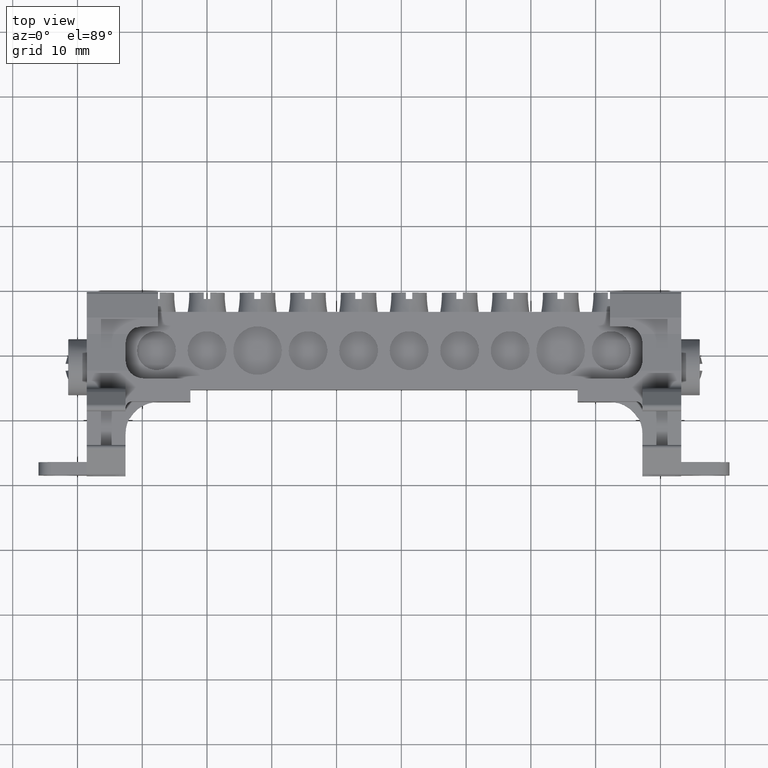
[diagram: clean part render]
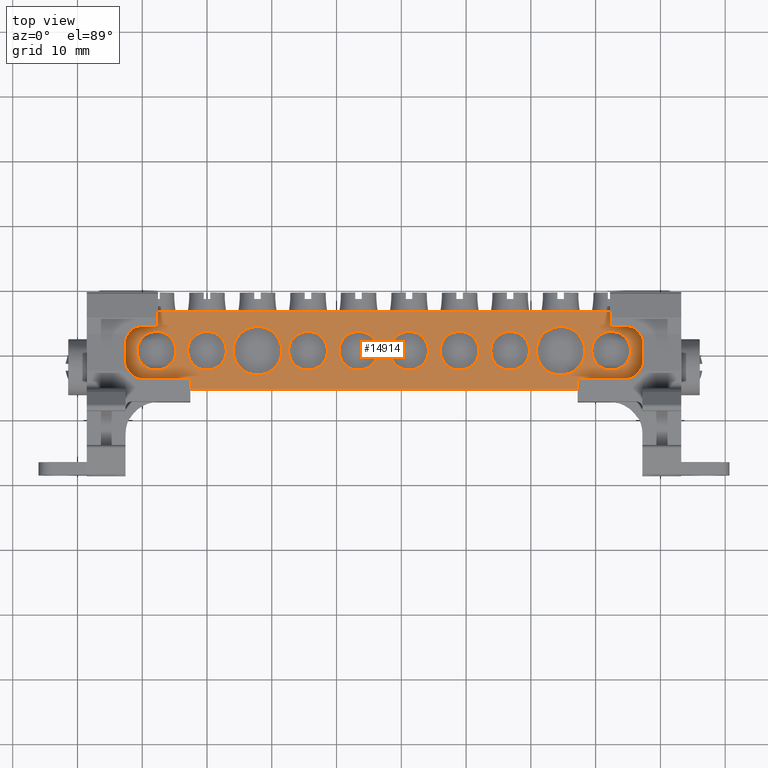
[diagram: same view with one face highlighted and labeled with its STEP entity id]
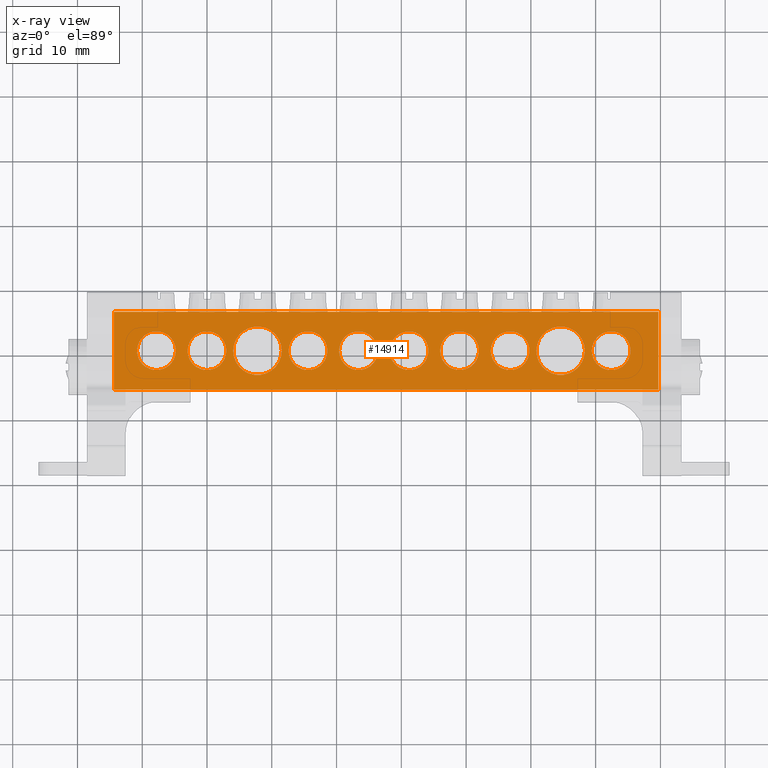
[diagram: x-ray of the same camera — body ghosted, the highlighted face saturated]
A machine part, top view. The second image highlights one B-rep face of the part: STEP entity #14914.
The next image is the same camera in x-ray: the body ghosted, the highlighted face saturated — about 0% of this face is hidden behind the body in this view.
In plain terms, the highlighted planar face has unit normal (0, 0, -1).
Its self-contained STEP definition (entity closure, byte-faithful):
#277 = CIRCLE ( 'NONE', #278, 3.000000000000002700 ) ;
#278 = AXIS2_PLACEMENT_3D ( 'NONE', #1253, #1250, #1277 ) ;
#279 = CIRCLE ( 'NONE', #296, 3.000000000000002700 ) ;
#296 = AXIS2_PLACEMENT_3D ( 'NONE', #1313, #1320, #1338 ) ;
#321 = CIRCLE ( 'NONE', #322, 3.000000000000002700 ) ;
#322 = AXIS2_PLACEMENT_3D ( 'NONE', #1418, #1405, #1419 ) ;
#1250 = DIRECTION ( 'NONE',  ( 0.0000000000000000000, 0.0000000000000000000, 1.000000000000000000 ) ) ;
#1253 = CARTESIAN_POINT ( 'NONE',  ( -84.40539649368642500, -39.46391012921964900, 99.25723811290720300 ) ) ;
#1277 = DIRECTION ( 'NONE',  ( -1.000000000000000000, 0.0000000000000000000, 0.0000000000000000000 ) ) ;
#1313 = CARTESIAN_POINT ( 'NONE',  ( -76.60539649368639900, -39.46391012921964900, 99.25723811290720300 ) ) ;
#1320 = DIRECTION ( 'NONE',  ( 0.0000000000000000000, 0.0000000000000000000, 1.000000000000000000 ) ) ;
#1338 = DIRECTION ( 'NONE',  ( -1.000000000000000000, 0.0000000000000000000, 0.0000000000000000000 ) ) ;
#1405 = DIRECTION ( 'NONE',  ( 0.0000000000000000000, 0.0000000000000000000, 1.000000000000000000 ) ) ;
#1418 = CARTESIAN_POINT ( 'NONE',  ( -68.80539649368640200, -39.46391012921964900, 99.25723811290720300 ) ) ;
#1419 = DIRECTION ( 'NONE',  ( -1.000000000000000000, 0.0000000000000000000, 0.0000000000000000000 ) ) ;
#1513 = CARTESIAN_POINT ( 'NONE',  ( -73.60539649368639900, -39.46391012921964900, 99.25723811290720300 ) ) ;
#1515 = CARTESIAN_POINT ( 'NONE',  ( -110.8053964936864200, -39.46391012921964900, 99.25723811290720300 ) ) ;
#1673 = CARTESIAN_POINT ( 'NONE',  ( -79.60539649368639900, -39.46391012921964900, 99.25723811290720300 ) ) ;
#1675 = CARTESIAN_POINT ( 'NONE',  ( -87.40539649368642500, -39.46391012921964900, 99.25723811290720300 ) ) ;
#1676 = CARTESIAN_POINT ( 'NONE',  ( -71.80539649368640200, -39.46391012921964900, 99.25723811290720300 ) ) ;
#1679 = CARTESIAN_POINT ( 'NONE',  ( -65.80539649368640200, -39.46391012921964900, 99.25723811290720300 ) ) ;
#1683 = CARTESIAN_POINT ( 'NONE',  ( -88.45539649368639300, -39.46391012921964900, 99.25723811290720300 ) ) ;
#1684 = CARTESIAN_POINT ( 'NONE',  ( -84.40539649368642500, -39.46391012921964900, 99.25723811290720300 ) ) ;
#1685 = DIRECTION ( 'NONE',  ( -1.000000000000000000, 0.0000000000000000000, 0.0000000000000000000 ) ) ;
#1689 = DIRECTION ( 'NONE',  ( 0.0000000000000000000, 0.0000000000000000000, 1.000000000000000000 ) ) ;
#1690 = CARTESIAN_POINT ( 'NONE',  ( -64.00539649368640500, -39.46391012921964900, 99.25723811290720300 ) ) ;
#1708 = EDGE_CURVE ( 'NONE', #11611, #11573, #16912, .T. ) ;
#1710 = EDGE_CURVE ( 'NONE', #8427, #8460, #18089, .T. ) ;
#1711 = EDGE_CURVE ( 'NONE', #8433, #8455, #18045, .T. ) ;
#1717 = EDGE_CURVE ( 'NONE', #8460, #8271, #18087, .T. ) ;
#1725 = EDGE_CURVE ( 'NONE', #8476, #8433, #18132, .T. ) ;
#1728 = EDGE_CURVE ( 'NONE', #8455, #8427, #18133, .T. ) ;
#1729 = EDGE_CURVE ( 'NONE', #8515, #8479, #18130, .T. ) ;
#1744 = EDGE_CURVE ( 'NONE', #8271, #8440, #18165, .T. ) ;
#1759 = EDGE_CURVE ( 'NONE', #11595, #11564, #16938, .T. ) ;
#1884 = AXIS2_PLACEMENT_3D ( 'NONE', #8990, #8993, #8986 ) ;
#1892 = CIRCLE ( 'NONE', #1895, 3.000000000000002700 ) ;
#1895 = AXIS2_PLACEMENT_3D ( 'NONE', #8914, #8923, #8924 ) ;
#1898 = CIRCLE ( 'NONE', #1899, 3.000000000000002700 ) ;
#1899 = AXIS2_PLACEMENT_3D ( 'NONE', #9042, #9047, #9043 ) ;
#1903 = CIRCLE ( 'NONE', #1934, 3.000000000000002700 ) ;
#1906 = CIRCLE ( 'NONE', #1923, 3.750000000000003600 ) ;
#1913 = CIRCLE ( 'NONE', #1927, 3.750000000000003600 ) ;
#1923 = AXIS2_PLACEMENT_3D ( 'NONE', #8948, #8953, #8951 ) ;
#1927 = AXIS2_PLACEMENT_3D ( 'NONE', #8979, #8973, #8975 ) ;
#1933 = CIRCLE ( 'NONE', #1884, 3.000000000000002700 ) ;
#1934 = AXIS2_PLACEMENT_3D ( 'NONE', #8909, #8902, #8911 ) ;
#1964 = AXIS2_PLACEMENT_3D ( 'NONE', #9057, #9070, #9061 ) ;
#1987 = CIRCLE ( 'NONE', #1964, 3.000000000000002700 ) ;
#2052 = AXIS2_PLACEMENT_3D ( 'NONE', #1684, #1689, #1685 ) ;
#2067 = AXIS2_PLACEMENT_3D ( 'NONE', #21965, #21966, #21967 ) ;
#2070 = AXIS2_PLACEMENT_3D ( 'NONE', #14173, #14149, #14159 ) ;
#2076 = CIRCLE ( 'NONE', #2067, 3.000000000000002700 ) ;
#2089 = CIRCLE ( 'NONE', #2052, 3.000000000000002700 ) ;
#2093 = CIRCLE ( 'NONE', #2070, 3.750000000000003600 ) ;
#3856 = CARTESIAN_POINT ( 'NONE',  ( -40.60539649368644900, -39.46391012921964900, 99.25723811290720300 ) ) ;
#3864 = CARTESIAN_POINT ( 'NONE',  ( -103.0053964936863900, -39.46391012921964900, 99.25723811290720300 ) ) ;
#4654 = CIRCLE ( 'NONE', #4726, 3.000000000000002700 ) ;
#4726 = AXIS2_PLACEMENT_3D ( 'NONE', #6551, #6552, #6573 ) ;
#4743 = CIRCLE ( 'NONE', #4771, 3.000000000000002700 ) ;
#4771 = AXIS2_PLACEMENT_3D ( 'NONE', #5831, #5914, #5866 ) ;
#4774 = VECTOR ( 'NONE', #5878, 1000.000000000000000 ) ;
#4791 = VECTOR ( 'NONE', #6664, 1000.000000000000000 ) ;
#4806 = AXIS2_PLACEMENT_3D ( 'NONE', #6130, #6132, #6125 ) ;
#4815 = AXIS2_PLACEMENT_3D ( 'NONE', #6176, #6230, #6308 ) ;
#4816 = CIRCLE ( 'NONE', #4818, 3.750000000000003600 ) ;
#4818 = AXIS2_PLACEMENT_3D ( 'NONE', #13692, #13675, #13699 ) ;
#4824 = CIRCLE ( 'NONE', #4815, 3.000000000000002700 ) ;
#4825 = CIRCLE ( 'NONE', #4806, 3.000000000000002700 ) ;
#5831 = CARTESIAN_POINT ( 'NONE',  ( -68.80539649368640200, -39.46391012921964900, 99.25723811290720300 ) ) ;
#5866 = DIRECTION ( 'NONE',  ( -1.000000000000000000, 0.0000000000000000000, 0.0000000000000000000 ) ) ;
#5868 = CARTESIAN_POINT ( 'NONE',  ( -91.05539649368640200, -45.45958989761807300, 99.25723811290720300 ) ) ;
#5878 = DIRECTION ( 'NONE',  ( -1.000000000000000000, 0.0000000000000000000, -0.0000000000000000000 ) ) ;
#5914 = DIRECTION ( 'NONE',  ( 0.0000000000000000000, 0.0000000000000000000, 1.000000000000000000 ) ) ;
#5924 = LINE ( 'NONE', #5868, #4774 ) ;
#6125 = DIRECTION ( 'NONE',  ( 1.000000000000000000, 0.0000000000000000000, 0.0000000000000000000 ) ) ;
#6130 = CARTESIAN_POINT ( 'NONE',  ( -37.60539649368644200, -39.46391012921964900, 99.25723811290720300 ) ) ;
#6132 = DIRECTION ( 'NONE',  ( 0.0000000000000000000, 0.0000000000000000000, 1.000000000000000000 ) ) ;
#6176 = CARTESIAN_POINT ( 'NONE',  ( -61.00539649368639800, -39.46391012921964900, 99.25723811290720300 ) ) ;
#6230 = DIRECTION ( 'NONE',  ( 0.0000000000000000000, 0.0000000000000000000, 1.000000000000000000 ) ) ;
#6308 = DIRECTION ( 'NONE',  ( -1.000000000000000000, 0.0000000000000000000, 0.0000000000000000000 ) ) ;
#6459 = CARTESIAN_POINT ( 'NONE',  ( -30.30539649368634200, -38.84917704818487700, 99.25723811290701800 ) ) ;
#6551 = CARTESIAN_POINT ( 'NONE',  ( -53.20539649368640100, -39.46391012921964900, 99.25723811290720300 ) ) ;
#6552 = DIRECTION ( 'NONE',  ( 0.0000000000000000000, 0.0000000000000000000, 1.000000000000000000 ) ) ;
#6573 = DIRECTION ( 'NONE',  ( 1.000000000000000000, 0.0000000000000000000, 0.0000000000000000000 ) ) ;
#6633 = CARTESIAN_POINT ( 'NONE',  ( -91.05539649368640200, -45.46391012921959900, 99.25723811290720300 ) ) ;
#6636 = LINE ( 'NONE', #6633, #4791 ) ;
#6664 = DIRECTION ( 'NONE',  ( -1.000000000000000000, 0.0000000000000000000, -0.0000000000000000000 ) ) ;
#6766 = CARTESIAN_POINT ( 'NONE',  ( -102.5753964936866400, -45.45958989761886900, 99.25723811290720300 ) ) ;
#6769 = CARTESIAN_POINT ( 'NONE',  ( -114.4053964936864200, -33.46391012921964900, 99.25723811290720300 ) ) ;
#8271 = VERTEX_POINT ( 'NONE', #6459 ) ;
#8427 = VERTEX_POINT ( 'NONE', #6769 ) ;
#8433 = VERTEX_POINT ( 'NONE', #6766 ) ;
#8440 = VERTEX_POINT ( 'NONE', #17653 ) ;
#8455 = VERTEX_POINT ( 'NONE', #17195 ) ;
#8460 = VERTEX_POINT ( 'NONE', #17204 ) ;
#8476 = VERTEX_POINT ( 'NONE', #17233 ) ;
#8479 = VERTEX_POINT ( 'NONE', #17215 ) ;
#8515 = VERTEX_POINT ( 'NONE', #17232 ) ;
#8902 = DIRECTION ( 'NONE',  ( 0.0000000000000000000, 0.0000000000000000000, 1.000000000000000000 ) ) ;
#8909 = CARTESIAN_POINT ( 'NONE',  ( -100.0053964936863900, -39.46391012921964900, 99.25723811290720300 ) ) ;
#8911 = DIRECTION ( 'NONE',  ( 1.000000000000000000, 0.0000000000000000000, 0.0000000000000000000 ) ) ;
#8914 = CARTESIAN_POINT ( 'NONE',  ( -107.8053964936864000, -39.46391012921964900, 99.25723811290720300 ) ) ;
#8923 = DIRECTION ( 'NONE',  ( 0.0000000000000000000, 0.0000000000000000000, 1.000000000000000000 ) ) ;
#8924 = DIRECTION ( 'NONE',  ( 1.000000000000000000, 0.0000000000000000000, 0.0000000000000000000 ) ) ;
#8948 = CARTESIAN_POINT ( 'NONE',  ( -92.20539649368639300, -39.46391012921964900, 99.25723811290720300 ) ) ;
#8951 = DIRECTION ( 'NONE',  ( 1.000000000000000000, 0.0000000000000000000, 0.0000000000000000000 ) ) ;
#8953 = DIRECTION ( 'NONE',  ( 0.0000000000000000000, 0.0000000000000000000, 1.000000000000000000 ) ) ;
#8973 = DIRECTION ( 'NONE',  ( 0.0000000000000000000, 0.0000000000000000000, 1.000000000000000000 ) ) ;
#8975 = DIRECTION ( 'NONE',  ( 1.000000000000000000, 0.0000000000000000000, 0.0000000000000000000 ) ) ;
#8979 = CARTESIAN_POINT ( 'NONE',  ( -45.40539649368639600, -39.46391012921964900, 99.25723811290720300 ) ) ;
#8986 = DIRECTION ( 'NONE',  ( -1.000000000000000000, 0.0000000000000000000, 0.0000000000000000000 ) ) ;
#8990 = CARTESIAN_POINT ( 'NONE',  ( -61.00539649368639800, -39.46391012921964900, 99.25723811290720300 ) ) ;
#8993 = DIRECTION ( 'NONE',  ( 0.0000000000000000000, 0.0000000000000000000, 1.000000000000000000 ) ) ;
#9042 = CARTESIAN_POINT ( 'NONE',  ( -53.20539649368640100, -39.46391012921964900, 99.25723811290720300 ) ) ;
#9043 = DIRECTION ( 'NONE',  ( 1.000000000000000000, 0.0000000000000000000, 0.0000000000000000000 ) ) ;
#9047 = DIRECTION ( 'NONE',  ( 0.0000000000000000000, 0.0000000000000000000, 1.000000000000000000 ) ) ;
#9057 = CARTESIAN_POINT ( 'NONE',  ( -37.60539649368644200, -39.46391012921964900, 99.25723811290720300 ) ) ;
#9061 = DIRECTION ( 'NONE',  ( 1.000000000000000000, 0.0000000000000000000, 0.0000000000000000000 ) ) ;
#9070 = DIRECTION ( 'NONE',  ( 0.0000000000000000000, 0.0000000000000000000, 1.000000000000000000 ) ) ;
#9138 = CARTESIAN_POINT ( 'NONE',  ( -34.60539649368644200, -39.46391012921964900, 99.25723811290720300 ) ) ;
#9147 = CARTESIAN_POINT ( 'NONE',  ( -41.65539649368639600, -39.46391012921964900, 99.25723811290720300 ) ) ;
#9416 = EDGE_CURVE ( 'NONE', #11564, #11595, #1903, .T. ) ;
#9424 = EDGE_CURVE ( 'NONE', #11573, #11611, #1892, .T. ) ;
#9429 = EDGE_CURVE ( 'NONE', #11604, #11533, #1906, .T. ) ;
#9435 = EDGE_CURVE ( 'NONE', #11578, #11592, #1913, .T. ) ;
#9442 = EDGE_CURVE ( 'NONE', #11529, #11588, #1933, .T. ) ;
#9453 = EDGE_CURVE ( 'NONE', #11619, #11576, #1898, .T. ) ;
#9467 = EDGE_CURVE ( 'NONE', #11561, #11590, #1987, .T. ) ;
#9802 = EDGE_CURVE ( 'NONE', #11571, #11555, #2076, .T. ) ;
#9874 = EDGE_CURVE ( 'NONE', #11599, #11546, #2089, .T. ) ;
#10035 = ORIENTED_EDGE ( 'NONE', *, *, #9802, .F. ) ;
#10081 = ORIENTED_EDGE ( 'NONE', *, *, #22149, .F. ) ;
#10093 = ORIENTED_EDGE ( 'NONE', *, *, #9453, .F. ) ;
#10096 = ORIENTED_EDGE ( 'NONE', *, *, #9442, .F. ) ;
#10109 = ORIENTED_EDGE ( 'NONE', *, *, #14435, .F. ) ;
#10116 = ORIENTED_EDGE ( 'NONE', *, *, #22456, .F. ) ;
#10128 = ORIENTED_EDGE ( 'NONE', *, *, #14454, .F. ) ;
#10129 = ORIENTED_EDGE ( 'NONE', *, *, #9435, .F. ) ;
#10167 = ORIENTED_EDGE ( 'NONE', *, *, #1744, .F. ) ;
#10178 = ORIENTED_EDGE ( 'NONE', *, *, #22416, .F. ) ;
#10188 = ORIENTED_EDGE ( 'NONE', *, *, #9467, .F. ) ;
#10193 = ORIENTED_EDGE ( 'NONE', *, *, #1717, .F. ) ;
#10195 = ORIENTED_EDGE ( 'NONE', *, *, #1711, .F. ) ;
#10206 = ORIENTED_EDGE ( 'NONE', *, *, #22127, .F. ) ;
#10211 = ORIENTED_EDGE ( 'NONE', *, *, #22412, .F. ) ;
#10220 = ORIENTED_EDGE ( 'NONE', *, *, #9874, .F. ) ;
#10230 = ORIENTED_EDGE ( 'NONE', *, *, #1710, .F. ) ;
#10241 = ORIENTED_EDGE ( 'NONE', *, *, #1759, .F. ) ;
#10244 = ORIENTED_EDGE ( 'NONE', *, *, #22459, .F. ) ;
#10249 = ORIENTED_EDGE ( 'NONE', *, *, #1725, .F. ) ;
#10257 = ORIENTED_EDGE ( 'NONE', *, *, #1729, .F. ) ;
#10275 = ORIENTED_EDGE ( 'NONE', *, *, #22432, .F. ) ;
#10286 = ORIENTED_EDGE ( 'NONE', *, *, #11948, .F. ) ;
#10289 = ORIENTED_EDGE ( 'NONE', *, *, #14422, .F. ) ;
#10298 = ORIENTED_EDGE ( 'NONE', *, *, #1708, .F. ) ;
#10304 = ORIENTED_EDGE ( 'NONE', *, *, #9416, .F. ) ;
#10306 = ORIENTED_EDGE ( 'NONE', *, *, #9429, .F. ) ;
#10369 = ORIENTED_EDGE ( 'NONE', *, *, #1728, .F. ) ;
#10419 = ORIENTED_EDGE ( 'NONE', *, *, #9424, .F. ) ;
#11529 = VERTEX_POINT ( 'NONE', #1690 ) ;
#11533 = VERTEX_POINT ( 'NONE', #1683 ) ;
#11545 = VERTEX_POINT ( 'NONE', #1676 ) ;
#11546 = VERTEX_POINT ( 'NONE', #1675 ) ;
#11555 = VERTEX_POINT ( 'NONE', #1673 ) ;
#11558 = VERTEX_POINT ( 'NONE', #1679 ) ;
#11561 = VERTEX_POINT ( 'NONE', #3856 ) ;
#11564 = VERTEX_POINT ( 'NONE', #3864 ) ;
#11571 = VERTEX_POINT ( 'NONE', #1513 ) ;
#11573 = VERTEX_POINT ( 'NONE', #1515 ) ;
#11576 = VERTEX_POINT ( 'NONE', #21995 ) ;
#11578 = VERTEX_POINT ( 'NONE', #21981 ) ;
#11588 = VERTEX_POINT ( 'NONE', #22059 ) ;
#11590 = VERTEX_POINT ( 'NONE', #9138 ) ;
#11592 = VERTEX_POINT ( 'NONE', #9147 ) ;
#11595 = VERTEX_POINT ( 'NONE', #15269 ) ;
#11599 = VERTEX_POINT ( 'NONE', #21672 ) ;
#11604 = VERTEX_POINT ( 'NONE', #14202 ) ;
#11611 = VERTEX_POINT ( 'NONE', #14196 ) ;
#11619 = VERTEX_POINT ( 'NONE', #14184 ) ;
#11948 = EDGE_CURVE ( 'NONE', #11533, #11604, #2093, .T. ) ;
#13675 = DIRECTION ( 'NONE',  ( 0.0000000000000000000, 0.0000000000000000000, 1.000000000000000000 ) ) ;
#13692 = CARTESIAN_POINT ( 'NONE',  ( -45.40539649368639600, -39.46391012921964900, 99.25723811290720300 ) ) ;
#13699 = DIRECTION ( 'NONE',  ( 1.000000000000000000, 0.0000000000000000000, 0.0000000000000000000 ) ) ;
#14149 = DIRECTION ( 'NONE',  ( 0.0000000000000000000, 0.0000000000000000000, 1.000000000000000000 ) ) ;
#14159 = DIRECTION ( 'NONE',  ( 1.000000000000000000, 0.0000000000000000000, 0.0000000000000000000 ) ) ;
#14173 = CARTESIAN_POINT ( 'NONE',  ( -92.20539649368639300, -39.46391012921964900, 99.25723811290720300 ) ) ;
#14184 = CARTESIAN_POINT ( 'NONE',  ( -56.20539649368640100, -39.46391012921964900, 99.25723811290720300 ) ) ;
#14196 = CARTESIAN_POINT ( 'NONE',  ( -104.8053964936864000, -39.46391012921964900, 99.25723811290720300 ) ) ;
#14202 = CARTESIAN_POINT ( 'NONE',  ( -95.95539649368639300, -39.46391012921964900, 99.25723811290720300 ) ) ;
#14422 = EDGE_CURVE ( 'NONE', #11546, #11599, #277, .T. ) ;
#14435 = EDGE_CURVE ( 'NONE', #11555, #11571, #279, .T. ) ;
#14454 = EDGE_CURVE ( 'NONE', #11545, #11558, #321, .T. ) ;
#14914 = ADVANCED_FACE ( 'NONE', ( #15478, #15491, #15492, #15493, #15467, #15454, #15481, #15501, #15459, #15456, #15482 ), #15449, .F. ) ;
#15269 = CARTESIAN_POINT ( 'NONE',  ( -97.00539649368639100, -39.46391012921964900, 99.25723811290720300 ) ) ;
#15449 = PLANE ( 'NONE',  #22519 ) ;
#15450 = CARTESIAN_POINT ( 'NONE',  ( -91.05539649368640200, -33.46391012921964900, 99.25723811290720300 ) ) ;
#15453 = DIRECTION ( 'NONE',  ( 0.0000000000000000000, 0.0000000000000000000, -1.000000000000000000 ) ) ;
#15454 = FACE_BOUND ( 'NONE', #19938, .T. ) ;
#15455 = DIRECTION ( 'NONE',  ( -1.000000000000000000, 0.0000000000000000000, -0.0000000000000000000 ) ) ;
#15456 = FACE_BOUND ( 'NONE', #19961, .T. ) ;
#15459 = FACE_BOUND ( 'NONE', #20033, .T. ) ;
#15467 = FACE_BOUND ( 'NONE', #19940, .T. ) ;
#15478 = FACE_BOUND ( 'NONE', #19954, .T. ) ;
#15481 = FACE_BOUND ( 'NONE', #19968, .T. ) ;
#15482 = FACE_BOUND ( 'NONE', #19936, .T. ) ;
#15491 = FACE_BOUND ( 'NONE', #19979, .T. ) ;
#15492 = FACE_BOUND ( 'NONE', #19958, .T. ) ;
#15493 = FACE_BOUND ( 'NONE', #19993, .T. ) ;
#15501 = FACE_OUTER_BOUND ( 'NONE', #19989, .T. ) ;
#16880 = VECTOR ( 'NONE', #18080, 1000.000000000000000 ) ;
#16888 = VECTOR ( 'NONE', #18069, 1000.000000000000000 ) ;
#16903 = VECTOR ( 'NONE', #18049, 1000.000000000000000 ) ;
#16912 = CIRCLE ( 'NONE', #16919, 3.000000000000002700 ) ;
#16919 = AXIS2_PLACEMENT_3D ( 'NONE', #18037, #18043, #18092 ) ;
#16938 = CIRCLE ( 'NONE', #16986, 3.000000000000002700 ) ;
#16976 = VECTOR ( 'NONE', #18174, 1000.000000000000000 ) ;
#16986 = AXIS2_PLACEMENT_3D ( 'NONE', #18199, #18207, #18211 ) ;
#16989 = VECTOR ( 'NONE', #18122, 1000.000000000000000 ) ;
#16994 = VECTOR ( 'NONE', #18143, 1000.000000000000000 ) ;
#17000 = VECTOR ( 'NONE', #18107, 1000.000000000000000 ) ;
#17195 = CARTESIAN_POINT ( 'NONE',  ( -114.4053964936864200, -45.45958989761891200, 99.25723811290720300 ) ) ;
#17204 = CARTESIAN_POINT ( 'NONE',  ( -30.30539649368639800, -33.46391012921964900, 99.25723811290717400 ) ) ;
#17215 = CARTESIAN_POINT ( 'NONE',  ( -42.77539649368588900, -45.46391012921959900, 99.25723811290720300 ) ) ;
#17232 = CARTESIAN_POINT ( 'NONE',  ( -42.77539649368588900, -45.45958989761816600, 99.25723811290720300 ) ) ;
#17233 = CARTESIAN_POINT ( 'NONE',  ( -102.5753964936866400, -45.46391012921959900, 99.25723811290720300 ) ) ;
#17653 = CARTESIAN_POINT ( 'NONE',  ( -30.30539649368618200, -45.45958989761807300, 99.25723811290717400 ) ) ;
#18034 = CARTESIAN_POINT ( 'NONE',  ( -30.30539649368639500, -33.46391012921964900, 99.25723811290720300 ) ) ;
#18037 = CARTESIAN_POINT ( 'NONE',  ( -107.8053964936864000, -39.46391012921964900, 99.25723811290720300 ) ) ;
#18043 = DIRECTION ( 'NONE',  ( 0.0000000000000000000, 0.0000000000000000000, 1.000000000000000000 ) ) ;
#18045 = LINE ( 'NONE', #18078, #16888 ) ;
#18049 = DIRECTION ( 'NONE',  ( -0.0000000000000000000, -1.000000000000000000, -0.0000000000000000000 ) ) ;
#18059 = CARTESIAN_POINT ( 'NONE',  ( -91.05539649368640200, -33.46391012921964900, 99.25723811290720300 ) ) ;
#18069 = DIRECTION ( 'NONE',  ( -1.000000000000000000, 0.0000000000000000000, -0.0000000000000000000 ) ) ;
#18078 = CARTESIAN_POINT ( 'NONE',  ( -91.05539649368640200, -45.45958989761885500, 99.25723811290720300 ) ) ;
#18080 = DIRECTION ( 'NONE',  ( 1.000000000000000000, -0.0000000000000000000, 0.0000000000000000000 ) ) ;
#18087 = LINE ( 'NONE', #18034, #16903 ) ;
#18089 = LINE ( 'NONE', #18059, #16880 ) ;
#18092 = DIRECTION ( 'NONE',  ( 1.000000000000000000, 0.0000000000000000000, 0.0000000000000000000 ) ) ;
#18107 = DIRECTION ( 'NONE',  ( -1.123605221868002000E-014, 1.000000000000000000, 0.0000000000000000000 ) ) ;
#18122 = DIRECTION ( 'NONE',  ( 0.0000000000000000000, 1.000000000000000000, 0.0000000000000000000 ) ) ;
#18126 = CARTESIAN_POINT ( 'NONE',  ( -42.77539649368589600, -45.09798989761740300, 99.25723811290720300 ) ) ;
#18130 = LINE ( 'NONE', #18126, #16994 ) ;
#18132 = LINE ( 'NONE', #18142, #17000 ) ;
#18133 = LINE ( 'NONE', #18140, #16989 ) ;
#18140 = CARTESIAN_POINT ( 'NONE',  ( -114.4053964936864200, -33.46391012921964900, 99.25723811290720300 ) ) ;
#18142 = CARTESIAN_POINT ( 'NONE',  ( -102.5753964936866400, -45.09798989761807100, 99.25723811290720300 ) ) ;
#18143 = DIRECTION ( 'NONE',  ( 1.100161628464490100E-014, -1.000000000000000000, 0.0000000000000000000 ) ) ;
#18160 = CARTESIAN_POINT ( 'NONE',  ( -30.30539649368635900, -33.46391012921964900, 99.25723811290720300 ) ) ;
#18165 = LINE ( 'NONE', #18160, #16976 ) ;
#18174 = DIRECTION ( 'NONE',  ( -0.0000000000000000000, -1.000000000000000000, -0.0000000000000000000 ) ) ;
#18199 = CARTESIAN_POINT ( 'NONE',  ( -100.0053964936863900, -39.46391012921964900, 99.25723811290720300 ) ) ;
#18207 = DIRECTION ( 'NONE',  ( 0.0000000000000000000, 0.0000000000000000000, 1.000000000000000000 ) ) ;
#18211 = DIRECTION ( 'NONE',  ( 1.000000000000000000, 0.0000000000000000000, 0.0000000000000000000 ) ) ;
#19936 = EDGE_LOOP ( 'NONE', ( #10286, #10306 ) ) ;
#19938 = EDGE_LOOP ( 'NONE', ( #10244, #10129 ) ) ;
#19940 = EDGE_LOOP ( 'NONE', ( #10275, #10188 ) ) ;
#19954 = EDGE_LOOP ( 'NONE', ( #10289, #10220 ) ) ;
#19958 = EDGE_LOOP ( 'NONE', ( #10128, #10211 ) ) ;
#19961 = EDGE_LOOP ( 'NONE', ( #10241, #10304 ) ) ;
#19968 = EDGE_LOOP ( 'NONE', ( #10206, #10093 ) ) ;
#19979 = EDGE_LOOP ( 'NONE', ( #10109, #10035 ) ) ;
#19989 = EDGE_LOOP ( 'NONE', ( #10081, #10257, #10178, #10167, #10193, #10230, #10369, #10195, #10249 ) ) ;
#19993 = EDGE_LOOP ( 'NONE', ( #10096, #10116 ) ) ;
#20033 = EDGE_LOOP ( 'NONE', ( #10298, #10419 ) ) ;
#21672 = CARTESIAN_POINT ( 'NONE',  ( -81.40539649368641100, -39.46391012921964900, 99.25723811290720300 ) ) ;
#21965 = CARTESIAN_POINT ( 'NONE',  ( -76.60539649368639900, -39.46391012921964900, 99.25723811290720300 ) ) ;
#21966 = DIRECTION ( 'NONE',  ( 0.0000000000000000000, 0.0000000000000000000, 1.000000000000000000 ) ) ;
#21967 = DIRECTION ( 'NONE',  ( -1.000000000000000000, 0.0000000000000000000, 0.0000000000000000000 ) ) ;
#21981 = CARTESIAN_POINT ( 'NONE',  ( -49.15539649368640300, -39.46391012921964900, 99.25723811290720300 ) ) ;
#21995 = CARTESIAN_POINT ( 'NONE',  ( -50.20539649368639300, -39.46391012921964900, 99.25723811290720300 ) ) ;
#22059 = CARTESIAN_POINT ( 'NONE',  ( -58.00539649368639800, -39.46391012921964900, 99.25723811290720300 ) ) ;
#22127 = EDGE_CURVE ( 'NONE', #11576, #11619, #4654, .T. ) ;
#22149 = EDGE_CURVE ( 'NONE', #8479, #8476, #6636, .T. ) ;
#22412 = EDGE_CURVE ( 'NONE', #11558, #11545, #4743, .T. ) ;
#22416 = EDGE_CURVE ( 'NONE', #8440, #8515, #5924, .T. ) ;
#22432 = EDGE_CURVE ( 'NONE', #11590, #11561, #4825, .T. ) ;
#22456 = EDGE_CURVE ( 'NONE', #11588, #11529, #4824, .T. ) ;
#22459 = EDGE_CURVE ( 'NONE', #11592, #11578, #4816, .T. ) ;
#22519 = AXIS2_PLACEMENT_3D ( 'NONE', #15450, #15453, #15455 ) ;